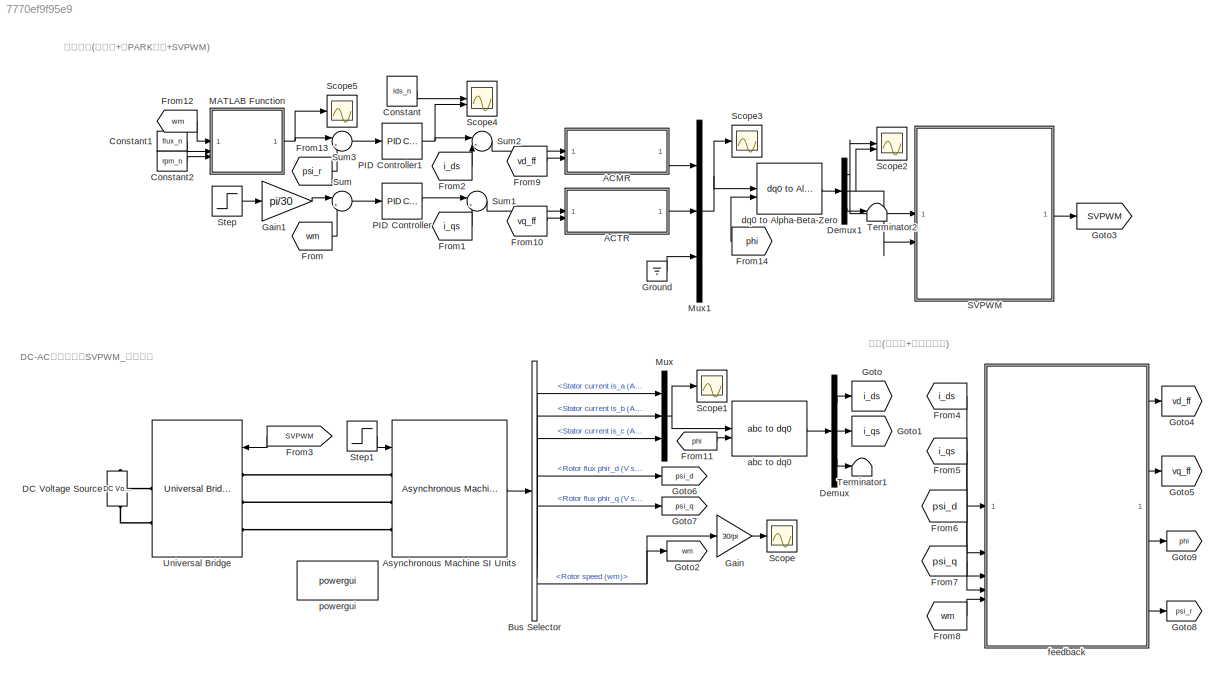
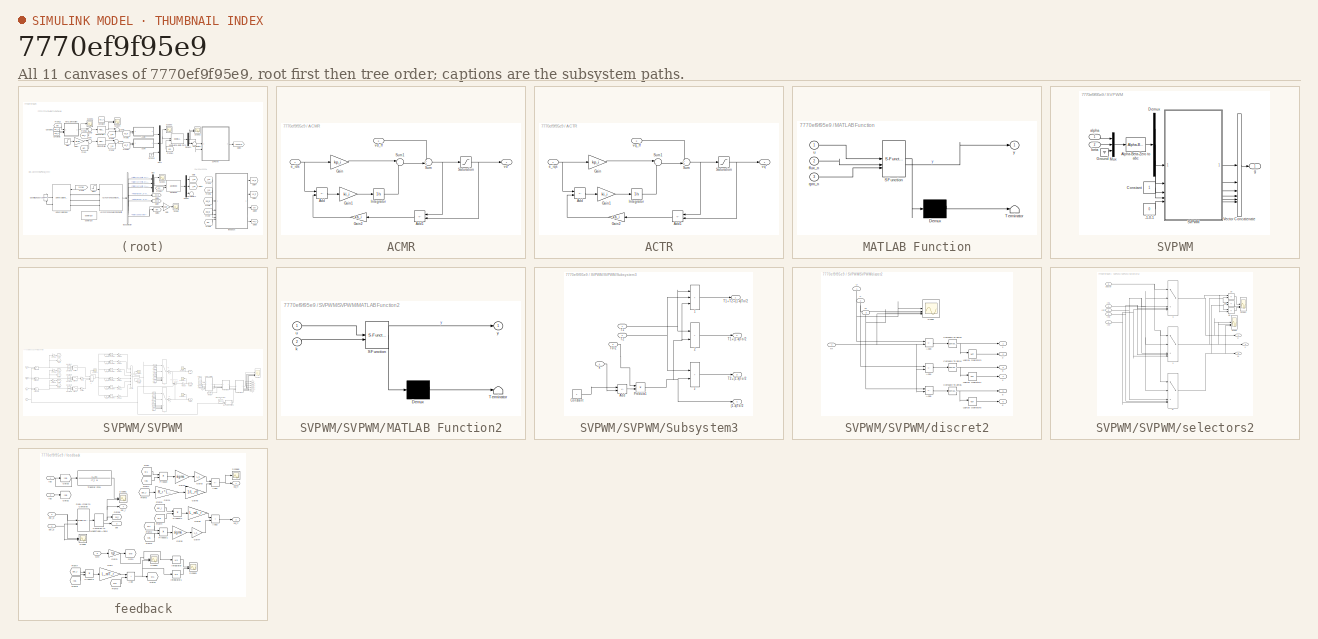
[diagram: thumbnail index - all 11 canvases of the model, root first then tree order]
MODEL slx_7770ef9f95e9
KIND model
CONFIG AbsTol = auto
CONFIG EnableMultiTasking = off
CONFIG FixedStep = auto
CONFIG MaxStep = auto
CONFIG MinStep = auto
CONFIG RelTol = 1e-3
CONFIG SampleTimeConstraint = Unconstrained
CONFIG SolverName = FixedStepAuto
CONFIG StartTime = 0.0
CONFIG StopTime = 1
BLOCK [SubSystem] ACMR
BLOCK [Sum] ACMR/Add
  IconShape = rectangular
  Inputs = +-
BLOCK [Sum] ACMR/Add1
  IconShape = rectangular
  Inputs = +-
BLOCK [Gain] ACMR/Gain
  Gain = kp_i
BLOCK [Gain] ACMR/Gain1
  Gain = ki_i
BLOCK [Gain] ACMR/Gain2
  Gain = ka_i
BLOCK [Integrator] ACMR/Integrator
BLOCK [Saturate] ACMR/Saturation
  LowerLimit = -V_max * 2
  UpperLimit = V_max * 2
BLOCK [Sum] ACMR/Sum
  Inputs = ++|
BLOCK [Sum] ACMR/Sum1
  Inputs = |++
BLOCK [Inport] ACMR/e_ids
BLOCK [Outport] ACMR/vd*
BLOCK [Inport] ACMR/vd_ff
  Port = 2
BLOCK [SubSystem] ACTR
BLOCK [Sum] ACTR/Add
  IconShape = rectangular
  Inputs = +-
BLOCK [Sum] ACTR/Add1
  IconShape = rectangular
  Inputs = +-
BLOCK [Gain] ACTR/Gain
  Gain = kp_i
BLOCK [Gain] ACTR/Gain1
  Gain = ki_i
BLOCK [Gain] ACTR/Gain2
  Gain = ka_i
BLOCK [Integrator] ACTR/Integrator
BLOCK [Saturate] ACTR/Saturation
  LowerLimit = -V_max * 2
  UpperLimit = V_max*2
BLOCK [Sum] ACTR/Sum
  Inputs = ++|
BLOCK [Sum] ACTR/Sum1
  Inputs = |++
BLOCK [Inport] ACTR/e_iqs
BLOCK [Outport] ACTR/vq*
BLOCK [Inport] ACTR/vq_ff
  Port = 2
BLOCK [Reference] Asynchronous Machine SI Units  REF=spsAsynchronousMachineSIUnitsLib/Asynchronous Machine
SI Units
  LibrarySourceBlock = sps_lib/Electrical Machines/Asynchronous Machine\nSI Units
  SourceBlock = spsAsynchronousMachineSIUnitsLib/Asynchronous Machine\nSI Units
  SourceType = Asynchronous Machine
BLOCK [BusSelector] Bus Selector
  OutputSignals = Stator measurements.Stator current is_a (A),Stator measurements.Stator current is_b (A),Stator measurements.Stator current is_c (A),Rotor measurements.Rotor flux phir_d (V s),Rotor measurements.Rotor flux phir_q (V s),Mechanical.Rotor speed (wm),Mechanical.Electromagnetic torque Te (N*m),Mechanical.Rotor angle thetam (rad)
BLOCK [Constant] Constant
  Value = Ids_n
BLOCK [Constant] Constant1
  Value = flux_n
BLOCK [Constant] Constant2
  Value = rpm_n
BLOCK [Reference] DC Voltage Source  REF=spsDCVoltageSourceLib/DC Voltage Source
  LibrarySourceBlock = sps_lib/Sources/DC Voltage Source
  SourceBlock = spsDCVoltageSourceLib/DC Voltage Source
  SourceType = DC Voltage Source
BLOCK [Demux] Demux
  Outputs = 3
BLOCK [Demux] Demux1
  Outputs = 3
BLOCK [From] From
  GotoTag = wm
BLOCK [From] From1
  GotoTag = i_qs
BLOCK [From] From10
  GotoTag = vq_ff
BLOCK [From] From11
  GotoTag = phi
BLOCK [From] From12
  GotoTag = wm
BLOCK [From] From13
  GotoTag = psi_r
BLOCK [From] From14
  GotoTag = phi
  NameLocation = top
BLOCK [From] From2
  GotoTag = i_ds
BLOCK [From] From3
  GotoTag = SVPWM
  NameLocation = top
BLOCK [From] From4
  GotoTag = i_ds
BLOCK [From] From5
  GotoTag = i_qs
BLOCK [From] From6
  GotoTag = psi_d
BLOCK [From] From7
  GotoTag = psi_q
BLOCK [From] From8
  GotoTag = wm
BLOCK [From] From9
  GotoTag = vd_ff
BLOCK [Gain] Gain
  Gain = 30/pi
BLOCK [Gain] Gain1
  Gain = pi/30
BLOCK [Goto] Goto
  GotoTag = i_ds
BLOCK [Goto] Goto1
  GotoTag = i_qs
BLOCK [Goto] Goto2
  GotoTag = wm
BLOCK [Goto] Goto3
  GotoTag = SVPWM
BLOCK [Goto] Goto4
  GotoTag = vd_ff
BLOCK [Goto] Goto5
  GotoTag = vq_ff
BLOCK [Goto] Goto6
  GotoTag = psi_d
BLOCK [Goto] Goto7
  GotoTag = psi_q
BLOCK [Goto] Goto8
  GotoTag = psi_r
BLOCK [Goto] Goto9
  GotoTag = phi
BLOCK [Ground] Ground
BLOCK [SubSystem] MATLAB Function
  ErrorFcn = Stateflow.Translate.translate
  PermitHierarchicalResolution = ExplicitOnly
  SFBlockType = MATLAB Function
  TreatAsAtomicUnit = on
BLOCK [Demux] MATLAB Function/ Demux 
  Outputs = 1
BLOCK [S-Function] MATLAB Function/ SFunction 
  EnableBusSupport = off
  FunctionName = sf_sfun
  PortCounts = [3 2]
  SFcnIsStateOwnerBlock = off
  SFunctionDeploymentMode = off
  Tag = Stateflow S-Function 2
BLOCK [Terminator] MATLAB Function/ Terminator 
BLOCK [Inport] MATLAB Function/flux_n
  Port = 2
BLOCK [Inport] MATLAB Function/rpm_n
  Port = 3
BLOCK [Inport] MATLAB Function/u
BLOCK [Outport] MATLAB Function/y
BLOCK [Mux] Mux
  DisplayOption = bar
  Inputs = 3
BLOCK [Mux] Mux1
  DisplayOption = bar
  Inputs = 3
BLOCK [Reference] PID Controller  REF=slpidlib/PID Controller
  LibrarySourceBlock = simulink/Continuous/PID Controller
  SourceBlock = slpidlib/PID Controller
  SourceType = PID 1dof
BLOCK [Reference] PID Controller1  REF=slpidlib/PID Controller
  LibrarySourceBlock = simulink/Continuous/PID Controller
  SourceBlock = slpidlib/PID Controller
  SourceType = PID 1dof
BLOCK [SubSystem] SVPWM
BLOCK [Constant] SVPWM/-1-0-1
  Value = 0
BLOCK [Reference] SVPWM/Alpha-Beta-Zero to abc  REF=spsAlphaBetaZerotoabcLib/Alpha-Beta-Zero
to abc
  LibrarySourceBlock = sps_lib/Control/Alpha-Beta-Zero\nto abc
  SourceBlock = spsAlphaBetaZerotoabcLib/Alpha-Beta-Zero\nto abc
  SourceType = Alpha-Beta-Zero to abc Transformation
BLOCK [Constant] SVPWM/Constant
BLOCK [Demux] SVPWM/Demux
  Outputs = 3
BLOCK [Ground] SVPWM/Ground
BLOCK [Mux] SVPWM/Mux
  DisplayOption = bar
  Inputs = 3
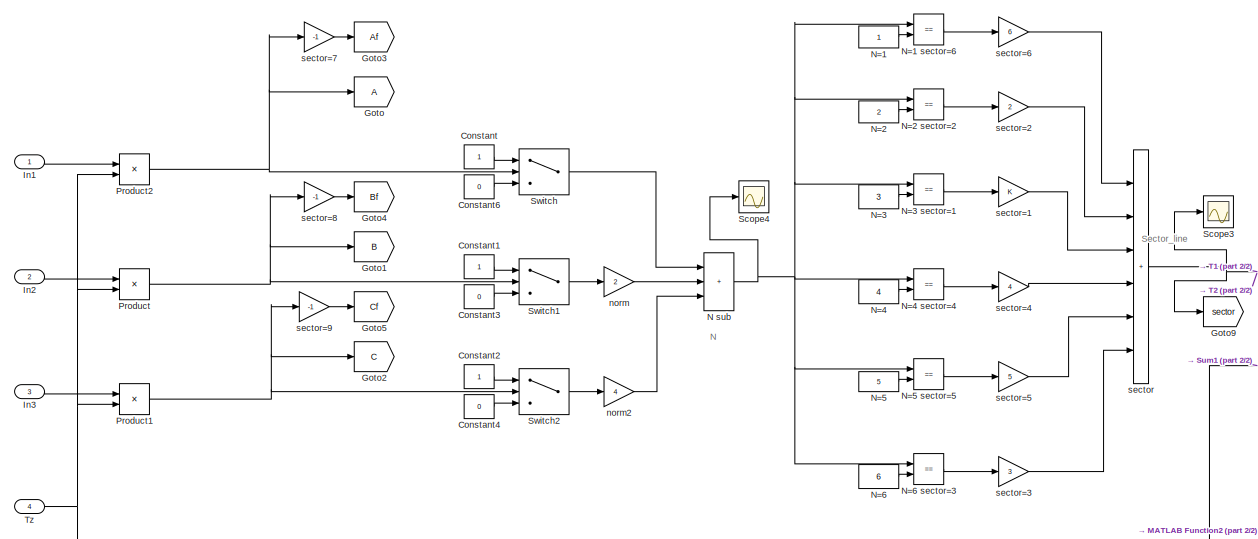
[diagram: SVPWM/SVPWM - part 1/2, left side, full height]
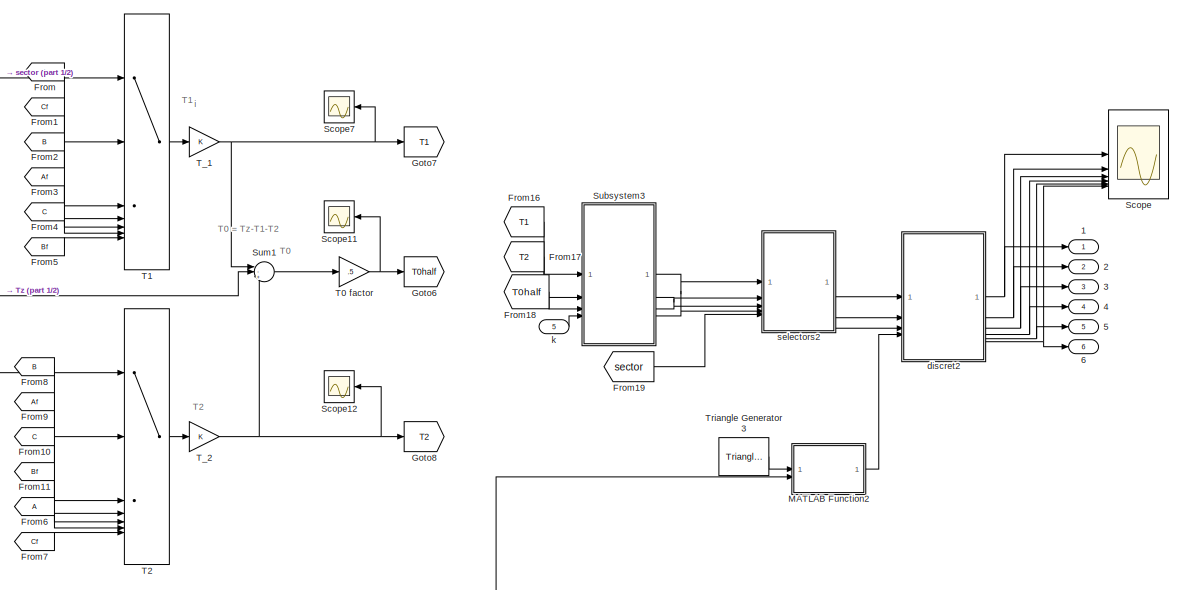
[diagram: SVPWM/SVPWM - part 2/2, right side, full height]
BLOCK [SubSystem] SVPWM/SVPWM
BLOCK [Outport] SVPWM/SVPWM/1
BLOCK [Outport] SVPWM/SVPWM/2
  Port = 2
BLOCK [Outport] SVPWM/SVPWM/3
  Port = 3
BLOCK [Outport] SVPWM/SVPWM/4
  Port = 4
BLOCK [Outport] SVPWM/SVPWM/5
  Port = 5
BLOCK [Outport] SVPWM/SVPWM/6
  Port = 6
BLOCK [Constant] SVPWM/SVPWM/Constant
BLOCK [Constant] SVPWM/SVPWM/Constant1
BLOCK [Constant] SVPWM/SVPWM/Constant2
BLOCK [Constant] SVPWM/SVPWM/Constant3
  Value = 0
BLOCK [Constant] SVPWM/SVPWM/Constant4
  Value = 0
BLOCK [Constant] SVPWM/SVPWM/Constant6
  Value = 0
BLOCK [From] SVPWM/SVPWM/From
BLOCK [From] SVPWM/SVPWM/From1
  GotoTag = Cf
BLOCK [From] SVPWM/SVPWM/From10
  GotoTag = C
BLOCK [From] SVPWM/SVPWM/From11
  GotoTag = Bf
BLOCK [From] SVPWM/SVPWM/From16
  GotoTag = T1
BLOCK [From] SVPWM/SVPWM/From17
  GotoTag = T2
BLOCK [From] SVPWM/SVPWM/From18
  GotoTag = T0half
BLOCK [From] SVPWM/SVPWM/From19
  GotoTag = sector
BLOCK [From] SVPWM/SVPWM/From2
  GotoTag = B
BLOCK [From] SVPWM/SVPWM/From3
  GotoTag = Af
BLOCK [From] SVPWM/SVPWM/From4
  GotoTag = C
BLOCK [From] SVPWM/SVPWM/From5
  GotoTag = Bf
BLOCK [From] SVPWM/SVPWM/From6
BLOCK [From] SVPWM/SVPWM/From7
  GotoTag = Cf
BLOCK [From] SVPWM/SVPWM/From8
  GotoTag = B
BLOCK [From] SVPWM/SVPWM/From9
  GotoTag = Af
BLOCK [Goto] SVPWM/SVPWM/Goto
BLOCK [Goto] SVPWM/SVPWM/Goto1
  GotoTag = B
BLOCK [Goto] SVPWM/SVPWM/Goto2
  GotoTag = C
BLOCK [Goto] SVPWM/SVPWM/Goto3
  GotoTag = Af
BLOCK [Goto] SVPWM/SVPWM/Goto4
  GotoTag = Bf
BLOCK [Goto] SVPWM/SVPWM/Goto5
  GotoTag = Cf
BLOCK [Goto] SVPWM/SVPWM/Goto6
  GotoTag = T0half
BLOCK [Goto] SVPWM/SVPWM/Goto7
  GotoTag = T1
BLOCK [Goto] SVPWM/SVPWM/Goto8
  GotoTag = T2
BLOCK [Goto] SVPWM/SVPWM/Goto9
  GotoTag = sector
BLOCK [Inport] SVPWM/SVPWM/In1
BLOCK [Inport] SVPWM/SVPWM/In2
  Port = 2
BLOCK [Inport] SVPWM/SVPWM/In3
  Port = 3
BLOCK [SubSystem] SVPWM/SVPWM/MATLAB Function2
  ErrorFcn = Stateflow.Translate.translate
  LibrarySourceBlock = simulink/User-Defined\nFunctions/MATLAB Function
  PermitHierarchicalResolution = ExplicitOnly
  SFBlockType = MATLAB Function
  TreatAsAtomicUnit = on
BLOCK [Demux] SVPWM/SVPWM/MATLAB Function2/ Demux 
  Outputs = 1
BLOCK [S-Function] SVPWM/SVPWM/MATLAB Function2/ SFunction 
  EnableBusSupport = off
  FunctionName = sf_sfun
  PortCounts = [2 2]
  SFcnIsStateOwnerBlock = off
  SFunctionDeploymentMode = off
  Tag = Stateflow S-Function 3
BLOCK [Terminator] SVPWM/SVPWM/MATLAB Function2/ Terminator 
BLOCK [Inport] SVPWM/SVPWM/MATLAB Function2/k
  Port = 2
BLOCK [Inport] SVPWM/SVPWM/MATLAB Function2/u
BLOCK [Outport] SVPWM/SVPWM/MATLAB Function2/y
BLOCK [Sum] SVPWM/SVPWM/N sub
  IconShape = rectangular
  Inputs = +++
BLOCK [Constant] SVPWM/SVPWM/N=1
BLOCK [RelationalOperator] SVPWM/SVPWM/N=1 sector=6
  InputSameDT = off
  Operator = ==
  OutDataTypeStr = boolean
BLOCK [Constant] SVPWM/SVPWM/N=2
  Value = 2
BLOCK [RelationalOperator] SVPWM/SVPWM/N=2 sector=2
  InputSameDT = off
  Operator = ==
  OutDataTypeStr = boolean
BLOCK [Constant] SVPWM/SVPWM/N=3
  Value = 3
BLOCK [RelationalOperator] SVPWM/SVPWM/N=3 sector=1
  InputSameDT = off
  Operator = ==
  OutDataTypeStr = boolean
BLOCK [Constant] SVPWM/SVPWM/N=4
  Value = 4
BLOCK [RelationalOperator] SVPWM/SVPWM/N=4 sector=4
  InputSameDT = off
  Operator = ==
  OutDataTypeStr = boolean
BLOCK [Constant] SVPWM/SVPWM/N=5
  Value = 5
BLOCK [RelationalOperator] SVPWM/SVPWM/N=5 sector=5
  InputSameDT = off
  Operator = ==
  OutDataTypeStr = boolean
BLOCK [Constant] SVPWM/SVPWM/N=6
  Value = 6
BLOCK [RelationalOperator] SVPWM/SVPWM/N=6 sector=3
  InputSameDT = off
  Operator = ==
  OutDataTypeStr = boolean
BLOCK [Product] SVPWM/SVPWM/Product
BLOCK [Product] SVPWM/SVPWM/Product1
BLOCK [Product] SVPWM/SVPWM/Product2
BLOCK [Scope] SVPWM/SVPWM/Scope
  ActiveDisplayYMaximum = 1.0733471074380165
  ActiveDisplayYMinimum = -0.11983471074380159
  DataLoggingVariableName = ScopeData1
  Floating = off
  GraphicalSettings = {"AxesScalingProperties":{"AlignXAxis":"Center","AlignYAxis":"Center","AutoScaleXAxisLimits":false,"AxesScaling":"Manual","AxesScalingNumUpdates":10,"ExpandOnly":true,"ScaleAxesLimitsAtStop":false,"XAxisDataRange":100,"YAxisDataRange":80},"DisplayProperties":{"ColorOrder":["auto","auto","auto","auto","auto","auto","auto","auto","auto","auto","auto","auto","auto","auto","auto","auto","auto","auto",...<+4003ch>
  LayoutDimensionsString = [6 1]
  MultipleDisplayCache = [{"MaxYLimMag":1.125,"MaxYLimReal":1.0733471074380165,"MinYLimMag":0,"MinYLimReal":-0.11983471074380159,"PlotAsMagnitudePhase":false,"ShowGrid":true,"ShowLegend":false,"Title":"%<SignalLabel>","YLabel":""},{"MaxYLimMag":1.125,"MaxYLimReal":1.1065465796726848,"MinYLimMag":0,"MinYLimReal":-0.46594019598078917,"PlotAsMagnitudePhase":false,"ShowGrid":true,"ShowLegend":false,"Title":"%<SignalLabel>","Y...<+792ch>
  NumInputPorts = 6
  ScopeFrameLocation = window
  WasSavedAsWebScope = on
  WindowPosition = [1.000000,1.000000,1280.000000,648.000000,]
BLOCK [Scope] SVPWM/SVPWM/Scope11
  ActiveDisplayYMaximum = 53.609603972290969
  ActiveDisplayYMinimum = -492.93722989300011
  DataLogging = on
  DataLoggingDecimateData = on
  DataLoggingDecimation = 1
  DataLoggingSaveFormat = Structure With Time
  DataLoggingVariableName = current2
  Floating = off
  GraphicalSettings = {"Style":{"BackgroundColor":[0.12941176470588237,0.12941176470588237,0.12941176470588237],"AxesColor":[0.07058823529411765,0.07058823529411765,0.07058823529411765],"LabelsColor":[0.8509803921568627,0.8509803921568627,0.8509803921568627],"PreserveColors":false,"Visible":[true],"LineStyle":["-"],"LineWidth":[1.5],"BarWidth":[0.9],"LineColor":["auto"],"LineFaceAlpha":[1],"LineEdgeAlpha":[1],"Marker":...<+1937ch>
  MultipleDisplayCache = [{"MaxYLimMag":492.93722989300011,"MaxYLimReal":53.609603972290969,"MinYLimMag":0,"MinYLimReal":-492.93722989300011,"PlotAsMagnitudePhase":false,"ShowGrid":true,"ShowLegend":true,"Title":"%<SignalLabel>","YLabel":""}]
  NameLocation = top
  NumInputPorts = 1
  ScopeFrameLocation = window
  ShowLegend = on
  WasSavedAsWebScope = on
  WindowPosition = [1.000000,1.000000,1280.000000,648.000000,]
BLOCK [Scope] SVPWM/SVPWM/Scope12
  ActiveDisplayYMaximum = 581.67686973428681
  ActiveDisplayYMinimum = -47.570247237341619
  DataLogging = on
  DataLoggingDecimateData = on
  DataLoggingDecimation = 1
  DataLoggingSaveFormat = Structure With Time
  DataLoggingVariableName = current3
  Floating = off
  GraphicalSettings = {"AxesScalingProperties":{"AlignXAxis":"Center","AlignYAxis":"Center","AutoScaleXAxisLimits":false,"AxesScaling":"Manual","AxesScalingNumUpdates":10,"ExpandOnly":true,"ScaleAxesLimitsAtStop":false,"XAxisDataRange":100,"YAxisDataRange":80},"DisplayProperties":{"ColorOrder":["auto","auto","auto","auto","auto","auto","auto","auto","auto","auto","auto","auto","auto","auto","auto","auto","auto","auto",...<+1932ch>
  MultipleDisplayCache = [{"MaxYLimMag":852.9801767915128,"MaxYLimReal":581.67686973428681,"MinYLimMag":0,"MinYLimReal":-47.570247237341619,"PlotAsMagnitudePhase":false,"ShowGrid":true,"ShowLegend":true,"Title":"%<SignalLabel>","YLabel":""}]
  NameLocation = top
  NumInputPorts = 1
  ScopeFrameLocation = window
  ShowLegend = on
  WasSavedAsWebScope = on
  WindowPosition = [1.000000,1.000000,1280.000000,648.000000,]
BLOCK [Scope] SVPWM/SVPWM/Scope3
  ActiveDisplayYMaximum = 6.2254857247595474
  ActiveDisplayYMinimum = 0.81076195805055384
  DataLoggingDecimateData = on
  DataLoggingDecimation = 1
  DataLoggingSaveFormat = Structure With Time
  DataLoggingVariableName = ScopeData3
  Floating = off
  GraphicalSettings = {"AxesScalingProperties":{"AlignXAxis":"Center","AlignYAxis":"Center","AutoScaleXAxisLimits":false,"AxesScaling":"Manual","AxesScalingNumUpdates":10,"ExpandOnly":true,"ScaleAxesLimitsAtStop":false,"XAxisDataRange":100,"YAxisDataRange":80},"DisplayProperties":{"ColorOrder":["auto","auto","auto","auto","auto","auto","auto","auto","auto","auto","auto","auto","auto","auto","auto","auto","auto","auto",...<+1928ch>
  MultipleDisplayCache = [{"MaxYLimMag":6.625,"MaxYLimReal":6.2254857247595474,"MinYLimMag":0.37500000000000022,"MinYLimReal":0.81076195805055384,"PlotAsMagnitudePhase":false,"ShowGrid":true,"ShowLegend":false,"Title":"%<SignalLabel>","YLabel":""}]
  NumInputPorts = 1
  ScopeFrameLocation = window
  WasSavedAsWebScope = on
  WindowPosition = [1.000000,1.000000,1280.000000,648.000000,]
BLOCK [Scope] SVPWM/SVPWM/Scope4
  ActiveDisplayYMaximum = 7.0888774478654026
  ActiveDisplayYMinimum = 0.33967719556370923
  DataLoggingDecimateData = on
  DataLoggingDecimation = 1
  DataLoggingSaveFormat = Structure With Time
  DataLoggingVariableName = ScopeData4
  Floating = off
  GraphicalSettings = {"AxesScalingProperties":{"AlignXAxis":"Center","AlignYAxis":"Center","AutoScaleXAxisLimits":false,"AxesScaling":"Manual","AxesScalingNumUpdates":10,"ExpandOnly":true,"ScaleAxesLimitsAtStop":false,"XAxisDataRange":100,"YAxisDataRange":80},"DisplayProperties":{"ColorOrder":["auto","auto","auto","auto","auto","auto","auto","auto","auto","auto","auto","auto","auto","auto","auto","auto","auto","auto",...<+1897ch>
  MultipleDisplayCache = [{"MaxYLimMag":6.625,"MaxYLimReal":7.0888774478654026,"MinYLimMag":0.37500000000000022,"MinYLimReal":0.33967719556370923,"PlotAsMagnitudePhase":false,"ShowGrid":true,"ShowLegend":false,"Title":"%<SignalLabel>","YLabel":""}]
  NumInputPorts = 1
  ScopeFrameLocation = window
  WasSavedAsWebScope = on
  WindowPosition = [1.000000,1.000000,1280.000000,648.000000,]
BLOCK [Scope] SVPWM/SVPWM/Scope7
  ActiveDisplayYMaximum = 933.20587173538911
  ActiveDisplayYMinimum = -744.74431123189447
  DataLogging = on
  DataLoggingDecimateData = on
  DataLoggingDecimation = 1
  DataLoggingSaveFormat = Structure With Time
  DataLoggingVariableName = current1
  Floating = off
  GraphicalSettings = {"AxesScalingProperties":{"AlignXAxis":"Center","AlignYAxis":"Center","AutoScaleXAxisLimits":false,"AxesScaling":"Manual","AxesScalingNumUpdates":10,"ExpandOnly":true,"ScaleAxesLimitsAtStop":false,"XAxisDataRange":100,"YAxisDataRange":80},"DisplayProperties":{"ColorOrder":["auto","auto","auto","auto","auto","auto","auto","auto","auto","auto","auto","auto","auto","auto","auto","auto","auto","auto",...<+1932ch>
  MultipleDisplayCache = [{"MaxYLimMag":851.69542049351094,"MaxYLimReal":933.20587173538911,"MinYLimMag":0,"MinYLimReal":-744.74431123189447,"PlotAsMagnitudePhase":false,"ShowGrid":true,"ShowLegend":true,"Title":"%<SignalLabel>","YLabel":""}]
  NameLocation = top
  NumInputPorts = 1
  ScopeFrameLocation = window
  ShowLegend = on
  WasSavedAsWebScope = on
  WindowPosition = [1.000000,1.000000,1280.000000,648.000000,]
BLOCK [SubSystem] SVPWM/SVPWM/Subsystem3
BLOCK [Outport] SVPWM/SVPWM/Subsystem3/(1-k)To//2
  Port = 4
BLOCK [Sum] SVPWM/SVPWM/Subsystem3/1
  IconShape = rectangular
  Inputs = +++
BLOCK [Sum] SVPWM/SVPWM/Subsystem3/2
  IconShape = rectangular
BLOCK [Sum] SVPWM/SVPWM/Subsystem3/Add
  IconShape = rectangular
  Inputs = +-
BLOCK [Constant] SVPWM/SVPWM/Subsystem3/Constant
BLOCK [Product] SVPWM/SVPWM/Subsystem3/Product1
BLOCK [Inport] SVPWM/SVPWM/Subsystem3/T0//2
  Port = 3
BLOCK [Inport] SVPWM/SVPWM/Subsystem3/T1
BLOCK [Outport] SVPWM/SVPWM/Subsystem3/T1+(1-k)To//2
  Port = 2
BLOCK [Outport] SVPWM/SVPWM/Subsystem3/T1+T2+(1-k)To//2
BLOCK [Inport] SVPWM/SVPWM/Subsystem3/T2
  Port = 2
BLOCK [Outport] SVPWM/SVPWM/Subsystem3/T2+(1-k)To//2
  Port = 3
BLOCK [Inport] SVPWM/SVPWM/Subsystem3/k
  Port = 4
BLOCK [Sum] SVPWM/SVPWM/Subsystem3/z
  IconShape = rectangular
BLOCK [Sum] SVPWM/SVPWM/Sum1
  Inputs = |-+-
BLOCK [Switch] SVPWM/SVPWM/Switch
  InputSameDT = off
  SaturateOnIntegerOverflow = off
BLOCK [Switch] SVPWM/SVPWM/Switch1
  InputSameDT = off
  SaturateOnIntegerOverflow = off
BLOCK [Switch] SVPWM/SVPWM/Switch2
  InputSameDT = off
  SaturateOnIntegerOverflow = off
BLOCK [Gain] SVPWM/SVPWM/T0 factor
  Gain = .5
BLOCK [MultiPortSwitch] SVPWM/SVPWM/T1
  DataPortIndices = {1,2,3,4,5,6}
  DataPortOrder = Specify indices
  DiagnosticForDefault = None
  InputSameDT = off
  Inputs = 4
  SaturateOnIntegerOverflow = off
BLOCK [MultiPortSwitch] SVPWM/SVPWM/T2
  DataPortIndices = {1,2,3,4,5,6}
  DataPortOrder = Specify indices
  DiagnosticForDefault = None
  InputSameDT = off
  Inputs = 4
  SaturateOnIntegerOverflow = off
BLOCK [Gain] SVPWM/SVPWM/T_1
BLOCK [Gain] SVPWM/SVPWM/T_2
BLOCK [Reference] SVPWM/SVPWM/Triangle Generator3  REF=spsTriangleGeneratorLib/Triangle
Generator
  LibrarySourceBlock = sps_lib/Sources/Signal Generator Sources/Triangle\nGenerator
  SourceBlock = spsTriangleGeneratorLib/Triangle\nGenerator
  SourceType = Triangle Generator
BLOCK [Inport] SVPWM/SVPWM/Tz
  Port = 4
BLOCK [SubSystem] SVPWM/SVPWM/discret2
BLOCK [Outport] SVPWM/SVPWM/discret2/1
BLOCK [Outport] SVPWM/SVPWM/discret2/2
  Port = 2
BLOCK [Outport] SVPWM/SVPWM/discret2/3
  Port = 3
BLOCK [Outport] SVPWM/SVPWM/discret2/4
  Port = 4
BLOCK [Outport] SVPWM/SVPWM/discret2/5
  Port = 5
BLOCK [Outport] SVPWM/SVPWM/discret2/6
  Port = 6
BLOCK [Sum] SVPWM/SVPWM/discret2/Add3
  IconShape = rectangular
  Inputs = -+
BLOCK [Sum] SVPWM/SVPWM/discret2/Add4
  IconShape = rectangular
  Inputs = -+
BLOCK [Sum] SVPWM/SVPWM/discret2/Add5
  IconShape = rectangular
  Inputs = -+
BLOCK [Reference] SVPWM/SVPWM/discret2/Compare To Zero3  REF=simulink/Logic and Bit
Operations/Compare
To Zero
  SourceBlock = simulink/Logic and Bit\nOperations/Compare\nTo Zero
  SourceType = Compare To Zero
BLOCK [Reference] SVPWM/SVPWM/discret2/Compare To Zero4  REF=simulink/Logic and Bit
Operations/Compare
To Zero
  SourceBlock = simulink/Logic and Bit\nOperations/Compare\nTo Zero
  SourceType = Compare To Zero
BLOCK [Reference] SVPWM/SVPWM/discret2/Compare To Zero5  REF=simulink/Logic and Bit
Operations/Compare
To Zero
  SourceBlock = simulink/Logic and Bit\nOperations/Compare\nTo Zero
  SourceType = Compare To Zero
BLOCK [Logic] SVPWM/SVPWM/discret2/Logical Operator3
  AllPortsSameDT = off
  Operator = NOT
  OutDataTypeStr = boolean
BLOCK [Logic] SVPWM/SVPWM/discret2/Logical Operator4
  AllPortsSameDT = off
  Operator = NOT
  OutDataTypeStr = boolean
BLOCK [Logic] SVPWM/SVPWM/discret2/Logical Operator5
  AllPortsSameDT = off
  Operator = NOT
  OutDataTypeStr = boolean
BLOCK [Scope] SVPWM/SVPWM/discret2/Scope
  ActiveDisplayYMaximum = 533.53223123772113
  ActiveDisplayYMinimum = -546.26196625582566
  DataLoggingVariableName = ScopeData2
  Floating = off
  GraphicalSettings = {"Style":{"BackgroundColor":[0.12941176470588237,0.12941176470588237,0.12941176470588237],"AxesColor":[0.07058823529411765,0.07058823529411765,0.07058823529411765],"LabelsColor":[0.8509803921568627,0.8509803921568627,0.8509803921568627],"PreserveColors":false,"Visible":[true,true,true,true],"LineStyle":["-","-","-","-"],"LineWidth":[1.5,1.5,1.5,1.5],"BarWidth":[0.9,0.9,0.9,0.9],"LineColor":["auto"...<+3141ch>
  LayoutDimensionsString = [4,1]
  MultipleDisplayCache = [{"MaxYLimMag":546.26196625582566,"MaxYLimReal":533.53223123772113,"MinYLimMag":0,"MinYLimReal":-546.26196625582566,"PlotAsMagnitudePhase":false,"ShowGrid":true,"ShowLegend":true,"Title":"%<SignalLabel>","YLabel":""},{"MaxYLimMag":547.10608194760152,"MaxYLimReal":547.10608194760152,"MinYLimMag":0,"MinYLimReal":-531.16170602435136,"PlotAsMagnitudePhase":false,"ShowGrid":true,"ShowLegend":true,"Titl...<+423ch>
  NumInputPorts = 4
  ScopeFrameLocation = window
  ShowLegend = on
  WasSavedAsWebScope = on
  WindowPosition = [1.000000,1.000000,1280.000000,648.000000,]
BLOCK [Inport] SVPWM/SVPWM/discret2/U
  NameLocation = right
BLOCK [Inport] SVPWM/SVPWM/discret2/V
  NameLocation = right
  Port = 2
BLOCK [Inport] SVPWM/SVPWM/discret2/W
  NameLocation = right
  Port = 3
BLOCK [Inport] SVPWM/SVPWM/discret2/tri
  Port = 4
BLOCK [Inport] SVPWM/SVPWM/k
  Port = 5
BLOCK [Gain] SVPWM/SVPWM/norm
  Gain = 2
BLOCK [Gain] SVPWM/SVPWM/norm2
  Gain = 4
BLOCK [Sum] SVPWM/SVPWM/sector
  IconShape = rectangular
  Inputs = ++++++
BLOCK [Gain] SVPWM/SVPWM/sector=1
BLOCK [Gain] SVPWM/SVPWM/sector=2
  Gain = 2
BLOCK [Gain] SVPWM/SVPWM/sector=3
  Gain = 3
BLOCK [Gain] SVPWM/SVPWM/sector=4
  Gain = 4
BLOCK [Gain] SVPWM/SVPWM/sector=5
  Gain = 5
BLOCK [Gain] SVPWM/SVPWM/sector=6
  Gain = 6
BLOCK [Gain] SVPWM/SVPWM/sector=7
  Gain = -1
BLOCK [Gain] SVPWM/SVPWM/sector=8
  Gain = -1
BLOCK [Gain] SVPWM/SVPWM/sector=9
  Gain = -1
BLOCK [SubSystem] SVPWM/SVPWM/selectors2
BLOCK [Inport] SVPWM/SVPWM/selectors2/In1
BLOCK [Inport] SVPWM/SVPWM/selectors2/In2
  Port = 2
BLOCK [Inport] SVPWM/SVPWM/selectors2/In3
  Port = 3
BLOCK [Inport] SVPWM/SVPWM/selectors2/In4
  Port = 4
BLOCK [Scope] SVPWM/SVPWM/selectors2/Scope
  ActiveDisplayYMaximum = 1.125
  ActiveDisplayYMinimum = -0.125
  DataLoggingVariableName = ScopeData1
  Floating = off
  GraphicalSettings = {"GraphicalSettings":{"LegacySettings":true,"Style":{"AxesScalingProperties":{"ScaleAxesLimitsAtStop":false},"Style":{"AxesColor":"[0 0 0]","ChannelNames":[""],"ColorOrder":"[1 1 0.0666666666666667;0.0745098039215686 0.623529411764706 1;1 0.411764705882353 0.16078431372549;0.392156862745098 0.831372549019608 0.0745098039215686;0.717647058823529 0.274509803921569 1;0.0588235294117647 1 1;1 0.074509...<+430ch>
  MultipleDisplayCache = [{"MaxYLimMag":1.125,"MaxYLimReal":1.125,"MinYLimMag":0,"MinYLimReal":-0.125,"PlotAsMagnitudePhase":false,"ShowGrid":true,"ShowLegend":true,"Title":"%<SignalLabel>","YLabel":""}]
  NumInputPorts = 3
  ShowLegend = on
  WasSavedAsWebScope = on
  WindowPosition = [1 1 1280 648]
BLOCK [Scope] SVPWM/SVPWM/selectors2/Scope1
  ActiveDisplayYMaximum = 1.25
  ActiveDisplayYMinimum = -1.25
  DataLoggingVariableName = ScopeData6
  Floating = off
  GraphicalSettings = {"GraphicalSettings":{"LegacySettings":true,"Style":{"AxesScalingProperties":{"ScaleAxesLimitsAtStop":false},"Style":{"AxesColor":"[0 0 0]","ChannelNames":[""],"ColorOrder":"[1 1 0.0666666666666667;0.0745098039215686 0.623529411764706 1;1 0.411764705882353 0.16078431372549;0.392156862745098 0.831372549019608 0.0745098039215686;0.717647058823529 0.274509803921569 1;0.0588235294117647 1 1;1 0.074509...<+430ch>
  MultipleDisplayCache = [{"MaxYLimMag":1.25,"MaxYLimReal":1.25,"MinYLimMag":0,"MinYLimReal":-1.25,"PlotAsMagnitudePhase":false,"ShowGrid":true,"ShowLegend":true,"Title":"%<SignalLabel>","YLabel":""}]
  NumInputPorts = 3
  ShowLegend = on
  WasSavedAsWebScope = on
  WindowPosition = [1 1 1280 648]
BLOCK [Outport] SVPWM/SVPWM/selectors2/U
BLOCK [Outport] SVPWM/SVPWM/selectors2/V
  Port = 2
BLOCK [Outport] SVPWM/SVPWM/selectors2/W
  Port = 3
BLOCK [Inport] SVPWM/SVPWM/selectors2/sector 
  Port = 5
BLOCK [MultiPortSwitch] SVPWM/SVPWM/selectors2/u
  DataPortIndices = {[1,6],2,5,[3,4]}
  DataPortOrder = Specify indices
  DiagnosticForDefault = None
  InputSameDT = off
  Inputs = 4
  SaturateOnIntegerOverflow = off
BLOCK [Sum] SVPWM/SVPWM/selectors2/uv
  IconShape = rectangular
  Inputs = +-
BLOCK [MultiPortSwitch] SVPWM/SVPWM/selectors2/v
  DataPortIndices = {[2,3],4,1,[5,6]}
  DataPortOrder = Specify indices
  DiagnosticForDefault = None
  InputSameDT = off
  Inputs = 4
  SaturateOnIntegerOverflow = off
BLOCK [Sum] SVPWM/SVPWM/selectors2/vw
  IconShape = rectangular
  Inputs = +-
BLOCK [MultiPortSwitch] SVPWM/SVPWM/selectors2/w
  DataPortIndices = {[4,5],6,3,[1,2]}
  DataPortOrder = Specify indices
  DiagnosticForDefault = None
  InputSameDT = off
  Inputs = 4
  SaturateOnIntegerOverflow = off
BLOCK [Sum] SVPWM/SVPWM/selectors2/wu
  IconShape = rectangular
  Inputs = +-
BLOCK [Concatenate] SVPWM/Vector Concatenate
  NumInputs = 6
BLOCK [Inport] SVPWM/alpha
BLOCK [Inport] SVPWM/beta
  Port = 2
BLOCK [Outport] SVPWM/g
BLOCK [Scope] Scope
  ActiveDisplayYMaximum = 2182.1289862079198
  ActiveDisplayYMinimum = -245.05423330740308
  Floating = off
  GraphicalSettings = {"Style":{"BackgroundColor":[0.12941176470588237,0.12941176470588237,0.12941176470588237],"AxesColor":[0.07058823529411765,0.07058823529411765,0.07058823529411765],"LabelsColor":[0.8509803921568627,0.8509803921568627,0.8509803921568627],"PreserveColors":false,"Visible":[true],"LineStyle":["-"],"LineWidth":[1.5],"BarWidth":[0.9],"LineColor":["auto"],"LineFaceAlpha":[1],"LineEdgeAlpha":[1],"Marker":...<+1991ch>
  MultipleDisplayCache = [{"MaxYLimMag":2182.1289862079198,"MaxYLimReal":2182.1289862079198,"MinYLimMag":0,"MinYLimReal":-245.05423330740308,"PlotAsMagnitudePhase":false,"ShowGrid":true,"ShowLegend":false,"Title":"%<SignalLabel>","YLabel":""}]
  NumInputPorts = 1
  ScopeFrameLocation = window
  WasSavedAsWebScope = on
  WindowPosition = [0.000000,12.000000,1280.000000,697.000000,]
BLOCK [Scope] Scope1
  ActiveDisplayYMaximum = 1
  ActiveDisplayYMinimum = -1
  DataLoggingVariableName = ScopeData2
  Floating = off
  GraphicalSettings = {"Style":{"BackgroundColor":[0.12941176470588237,0.12941176470588237,0.12941176470588237],"AxesColor":[0.07058823529411765,0.07058823529411765,0.07058823529411765],"LabelsColor":[0.8509803921568627,0.8509803921568627,0.8509803921568627],"PreserveColors":false,"Visible":[true,true,true],"LineStyle":["-","-","-"],"LineWidth":[1.5,1.5,1.5],"BarWidth":[0.9,0.9,0.9],"LineColor":["auto","auto","auto"],"...<+2160ch>
  MultipleDisplayCache = [{"MaxYLimMag":1,"MaxYLimReal":1,"MinYLimMag":0,"MinYLimReal":-1,"PlotAsMagnitudePhase":false,"ShowGrid":true,"ShowLegend":false,"Title":"%<SignalLabel>","YLabel":""}]
  NumInputPorts = 1
  ScopeFrameLocation = window
  WasSavedAsWebScope = on
  WindowPosition = [0.000000,12.000000,1280.000000,697.000000,]
BLOCK [Scope] Scope2
  ActiveDisplayYMaximum = 1
  ActiveDisplayYMinimum = -1
  DataLoggingVariableName = ScopeData5
  Floating = off
  GraphicalSettings = {"Style":{"BackgroundColor":[0.12941176470588237,0.12941176470588237,0.12941176470588237],"AxesColor":[0.07058823529411765,0.07058823529411765,0.07058823529411765],"LabelsColor":[0.8509803921568627,0.8509803921568627,0.8509803921568627],"PreserveColors":false,"Visible":[true,true],"LineStyle":["-","-"],"LineWidth":[1.5,1.5],"BarWidth":[0.9,0.9],"LineColor":["auto","auto"],"LineFaceAlpha":[1,1],"Li...<+1999ch>
  MultipleDisplayCache = [{"MaxYLimMag":1,"MaxYLimReal":1,"MinYLimMag":0,"MinYLimReal":-1,"PlotAsMagnitudePhase":false,"ShowGrid":true,"ShowLegend":false,"Title":"%<SignalLabel>","YLabel":""}]
  NumInputPorts = 2
  ScopeFrameLocation = window
  WasSavedAsWebScope = on
  WindowPosition = [1.000000,1.000000,1280.000000,697.000000,]
BLOCK [Scope] Scope3
  ActiveDisplayYMaximum = 499.74368491943784
  ActiveDisplayYMinimum = -553.80143526649249
  DataLoggingVariableName = ScopeData1
  Floating = off
  GraphicalSettings = {"Style":{"BackgroundColor":[0.12941176470588237,0.12941176470588237,0.12941176470588237],"AxesColor":[0.07058823529411765,0.07058823529411765,0.07058823529411765],"LabelsColor":[0.8509803921568627,0.8509803921568627,0.8509803921568627],"PreserveColors":false,"Visible":[true,true,true],"LineStyle":["-","-","-"],"LineWidth":[1.5,1.5,1.5],"BarWidth":[0.9,0.9,0.9],"LineColor":["auto","auto","auto"],"...<+2258ch>
  MultipleDisplayCache = [{"MaxYLimMag":553.80143526649249,"MaxYLimReal":499.74368491943784,"MinYLimMag":0,"MinYLimReal":-553.80143526649249,"PlotAsMagnitudePhase":false,"ShowGrid":true,"ShowLegend":true,"Title":"%<SignalLabel>","YLabel":""}]
  NumInputPorts = 1
  ScopeFrameLocation = window
  ShowLegend = on
  WasSavedAsWebScope = on
  WindowPosition = [1.000000,1.000000,1280.000000,697.000000,]
BLOCK [Scope] Scope4
  ActiveDisplayYMaximum = 4.03663172867287
  ActiveDisplayYMinimum = -2.7427305612345254
  DataLoggingVariableName = ScopeData8
  Floating = off
  GraphicalSettings = {"Style":{"BackgroundColor":[0.12941176470588237,0.12941176470588237,0.12941176470588237],"AxesColor":[0.07058823529411765,0.07058823529411765,0.07058823529411765],"LabelsColor":[0.8509803921568627,0.8509803921568627,0.8509803921568627],"PreserveColors":false,"Visible":[true,true],"LineStyle":["-","-"],"LineWidth":[1.5,1.5],"BarWidth":[0.9,0.9],"LineColor":["auto","auto"],"LineFaceAlpha":[1,1],"Li...<+2006ch>
  MultipleDisplayCache = [{"MaxYLimMag":4.03663172867287,"MaxYLimReal":4.03663172867287,"MinYLimMag":0,"MinYLimReal":-2.7427305612345254,"PlotAsMagnitudePhase":false,"ShowGrid":true,"ShowLegend":false,"Title":"%<SignalLabel>","YLabel":""}]
  NumInputPorts = 2
  ScopeFrameLocation = window
  WasSavedAsWebScope = on
  WindowPosition = [1.000000,1.000000,1280.000000,697.000000,]
BLOCK [Scope] Scope5
  ActiveDisplayYMaximum = 0.96156070598738208
  ActiveDisplayYMinimum = 0.877559064610581
  DataLoggingVariableName = ScopeData9
  Floating = off
  GraphicalSettings = {"Style":{"BackgroundColor":[0.12941176470588237,0.12941176470588237,0.12941176470588237],"AxesColor":[0.07058823529411765,0.07058823529411765,0.07058823529411765],"LabelsColor":[0.8509803921568627,0.8509803921568627,0.8509803921568627],"PreserveColors":false,"Visible":[true],"LineStyle":["-"],"LineWidth":[1.5],"BarWidth":[0.9],"LineColor":["auto"],"LineFaceAlpha":[1],"LineEdgeAlpha":[1],"Marker":...<+1897ch>
  MultipleDisplayCache = [{"MaxYLimMag":0.96156070598738208,"MaxYLimReal":0.96156070598738208,"MinYLimMag":0.877559064610581,"MinYLimReal":0.877559064610581,"PlotAsMagnitudePhase":false,"ShowGrid":true,"ShowLegend":false,"Title":"%<SignalLabel>","YLabel":""}]
  NumInputPorts = 1
  ScopeFrameLocation = window
  WasSavedAsWebScope = on
  WindowPosition = [1.000000,1.000000,1280.000000,697.000000,]
BLOCK [Step] Step
  After = 1500
  Before = 1000
  SampleTime = 0
  Time = 0.6
BLOCK [Step] Step1
  After = 20
  Before = 10
  SampleTime = 0
  Time = 0.3
BLOCK [Sum] Sum
  Inputs = |+-
BLOCK [Sum] Sum1
  Inputs = |+-
BLOCK [Sum] Sum2
  Inputs = |+-
BLOCK [Sum] Sum3
  Inputs = |+-
  NameLocation = top
BLOCK [Terminator] Terminator1
BLOCK [Terminator] Terminator2
BLOCK [Reference] Universal Bridge  REF=spsUniversalBridgeLib/Universal Bridge
  LibrarySourceBlock = sps_lib/Power Electronics/Universal Bridge
  SourceBlock = spsUniversalBridgeLib/Universal Bridge
  SourceType = Universal Bridge
BLOCK [Reference] abc to dq0  REF=spsabctodq0Lib/abc to dq0
  LibrarySourceBlock = sps_lib/Control/abc to dq0
  SourceBlock = spsabctodq0Lib/abc to dq0
  SourceType = abc to dq0 Transformation
BLOCK [Reference] dq0 to Alpha-Beta-Zero  REF=spsdq0toAlphaBetaZeroLib/dq0 to
Alpha-Beta-Zero
  LibrarySourceBlock = sps_lib/Control/dq0 to\nAlpha-Beta-Zero
  SourceBlock = spsdq0toAlphaBetaZeroLib/dq0 to\nAlpha-Beta-Zero
  SourceType = dq0 to Alpha-Beta-Zero Transformation
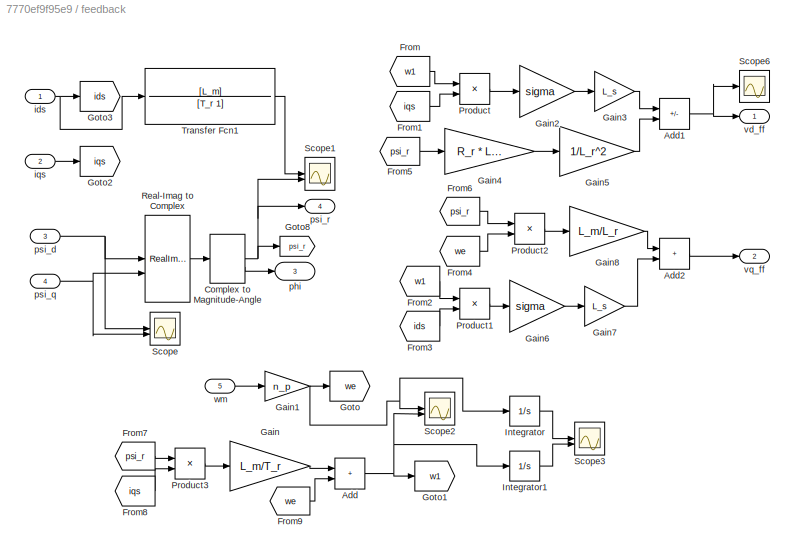
BLOCK [SubSystem] feedback
BLOCK [Sum] feedback/Add
  IconShape = rectangular
BLOCK [Sum] feedback/Add1
  IconShape = rectangular
  Inputs = --
BLOCK [Sum] feedback/Add2
  IconShape = rectangular
BLOCK [ComplexToMagnitudeAngle] feedback/Complex to Magnitude-Angle
BLOCK [From] feedback/From
  GotoTag = w1
BLOCK [From] feedback/From1
  GotoTag = iqs
BLOCK [From] feedback/From2
  GotoTag = w1
BLOCK [From] feedback/From3
  GotoTag = ids
BLOCK [From] feedback/From4
  GotoTag = we
BLOCK [From] feedback/From5
  GotoTag = psi_r
BLOCK [From] feedback/From6
  GotoTag = psi_r
BLOCK [From] feedback/From7
  GotoTag = psi_r
BLOCK [From] feedback/From8
  GotoTag = iqs
BLOCK [From] feedback/From9
  GotoTag = we
BLOCK [Gain] feedback/Gain
  Gain = L_m/T_r
BLOCK [Gain] feedback/Gain1
  Gain = n_p
BLOCK [Gain] feedback/Gain2
  Gain = sigma
BLOCK [Gain] feedback/Gain3
  Gain = L_s
BLOCK [Gain] feedback/Gain4
  Gain = R_r * L_m
BLOCK [Gain] feedback/Gain5
  Gain = 1/L_r^2
BLOCK [Gain] feedback/Gain6
  Gain = sigma
BLOCK [Gain] feedback/Gain7
  Gain = L_s
BLOCK [Gain] feedback/Gain8
  Gain = L_m/L_r
BLOCK [Goto] feedback/Goto
  GotoTag = we
BLOCK [Goto] feedback/Goto1
  GotoTag = w1
BLOCK [Goto] feedback/Goto2
  GotoTag = iqs
BLOCK [Goto] feedback/Goto3
  GotoTag = ids
BLOCK [Goto] feedback/Goto8
  GotoTag = psi_r
BLOCK [Integrator] feedback/Integrator
BLOCK [Integrator] feedback/Integrator1
BLOCK [Product] feedback/Product
BLOCK [Product] feedback/Product1
BLOCK [Product] feedback/Product2
BLOCK [Product] feedback/Product3
BLOCK [RealImagToComplex] feedback/Real-Imag to Complex
BLOCK [Scope] feedback/Scope
  ActiveDisplayYMaximum = 1.5992338688221852
  ActiveDisplayYMinimum = -1.6110842776276593
  DataLoggingVariableName = ScopeData7
  Floating = off
  GraphicalSettings = {"Style":{"BackgroundColor":[0.12941176470588237,0.12941176470588237,0.12941176470588237],"AxesColor":[0.07058823529411765,0.07058823529411765,0.07058823529411765],"LabelsColor":[0.8509803921568627,0.8509803921568627,0.8509803921568627],"PreserveColors":false,"Visible":[true,true],"LineStyle":["-","-"],"LineWidth":[1.5,1.5],"BarWidth":[0.9,0.9],"LineColor":["auto","auto"],"LineFaceAlpha":[1,1],"Li...<+2104ch>
  MultipleDisplayCache = [{"MaxYLimMag":1.6110842776276593,"MaxYLimReal":1.5992338688221852,"MinYLimMag":0,"MinYLimReal":-1.6110842776276593,"PlotAsMagnitudePhase":false,"ShowGrid":true,"ShowLegend":true,"Title":"%<SignalLabel>","YLabel":""}]
  NumInputPorts = 2
  ScopeFrameLocation = window
  ShowLegend = on
  WasSavedAsWebScope = on
  WindowPosition = [0.000000,12.000000,1280.000000,697.000000,]
BLOCK [Scope] feedback/Scope1
  ActiveDisplayYMaximum = 1.7279858547641289
  ActiveDisplayYMinimum = -0.19199842830712538
  DataLoggingVariableName = ScopeData3
  Floating = off
  GraphicalSettings = {"Style":{"BackgroundColor":[0.12941176470588237,0.12941176470588237,0.12941176470588237],"AxesColor":[0.07058823529411765,0.07058823529411765,0.07058823529411765],"LabelsColor":[0.8509803921568627,0.8509803921568627,0.8509803921568627],"PreserveColors":false,"Visible":[true,true],"LineStyle":["-","-"],"LineWidth":[1.5,1.5],"BarWidth":[0.9,0.9],"LineColor":["auto","auto"],"LineFaceAlpha":[1,1],"Li...<+2481ch>
  LayoutDimensionsString = [2,1]
  MultipleDisplayCache = [{"MaxYLimMag":1.7279858547641289,"MaxYLimReal":1.7279858547641289,"MinYLimMag":0,"MinYLimReal":-0.19199842830712538,"PlotAsMagnitudePhase":false,"ShowGrid":true,"ShowLegend":false,"Title":"%<SignalLabel>","YLabel":""},{"MaxYLimMag":1.7279841817573836,"MaxYLimReal":1.7279841817573836,"MinYLimMag":0,"MinYLimReal":-0.191998242417487,"PlotAsMagnitudePhase":false,"ShowGrid":true,"ShowLegend":false,"Ti...<+35ch>
  NumInputPorts = 2
  ScopeFrameLocation = window
  WasSavedAsWebScope = on
  WindowPosition = [1.000000,1.000000,1280.000000,697.000000,]
BLOCK [Scope] feedback/Scope2
  ActiveDisplayYMaximum = 260.34761589561333
  ActiveDisplayYMinimum = -28.950143898994849
  DataLoggingVariableName = ScopeData4
  Floating = off
  GraphicalSettings = {"Style":{"BackgroundColor":[0.12941176470588237,0.12941176470588237,0.12941176470588237],"AxesColor":[0.07058823529411765,0.07058823529411765,0.07058823529411765],"LabelsColor":[0.8509803921568627,0.8509803921568627,0.8509803921568627],"PreserveColors":false,"Visible":[true,true],"LineStyle":["-","-"],"LineWidth":[1.5,1.5],"BarWidth":[0.9,0.9],"LineColor":["auto","auto"],"LineFaceAlpha":[1,1],"Li...<+2100ch>
  MultipleDisplayCache = [{"MaxYLimMag":260.34761589561333,"MaxYLimReal":260.34761589561333,"MinYLimMag":0,"MinYLimReal":-28.950143898994849,"PlotAsMagnitudePhase":false,"ShowGrid":true,"ShowLegend":false,"Title":"%<SignalLabel>","YLabel":""}]
  NumInputPorts = 2
  ScopeFrameLocation = window
  WasSavedAsWebScope = on
  WindowPosition = [1.000000,1.000000,1280.000000,697.000000,]
BLOCK [Scope] feedback/Scope3
  ActiveDisplayYMaximum = 1
  ActiveDisplayYMinimum = -1
  DataLoggingVariableName = ScopeData6
  Floating = off
  GraphicalSettings = {"Style":{"BackgroundColor":[0.12941176470588237,0.12941176470588237,0.12941176470588237],"AxesColor":[0.07058823529411765,0.07058823529411765,0.07058823529411765],"LabelsColor":[0.8509803921568627,0.8509803921568627,0.8509803921568627],"PreserveColors":false,"Visible":[true,true],"LineStyle":["-","-"],"LineWidth":[1.5,1.5],"BarWidth":[0.9,0.9],"LineColor":["auto","auto"],"LineFaceAlpha":[1,1],"Li...<+2113ch>
  MultipleDisplayCache = [{"MaxYLimMag":1,"MaxYLimReal":1,"MinYLimMag":0,"MinYLimReal":-1,"PlotAsMagnitudePhase":false,"ShowGrid":true,"ShowLegend":false,"Title":"%<SignalLabel>","YLabel":""}]
  NumInputPorts = 2
  ScopeFrameLocation = window
  WasSavedAsWebScope = on
  WindowPosition = [1.000000,1.000000,1280.000000,697.000000,]
BLOCK [Scope] feedback/Scope6
  ActiveDisplayYMaximum = 1
  ActiveDisplayYMinimum = -1
  DataLogging = on
  DataLoggingSaveFormat = Array
  DataLoggingVariableName = usm0601
  Floating = off
  GraphicalSettings = {"Style":{"BackgroundColor":[0.12941176470588237,0.12941176470588237,0.12941176470588237],"AxesColor":[0.07058823529411765,0.07058823529411765,0.07058823529411765],"LabelsColor":[0.8509803921568627,0.8509803921568627,0.8509803921568627],"PreserveColors":false,"Visible":[true],"LineStyle":["-"],"LineWidth":[1.5],"BarWidth":[0.9],"LineColor":["auto"],"LineFaceAlpha":[1],"LineEdgeAlpha":[1],"Marker":...<+1886ch>
  MultipleDisplayCache = [{"MaxYLimMag":1,"MaxYLimReal":1,"MinYLimMag":0,"MinYLimReal":-1,"PlotAsMagnitudePhase":false,"ShowGrid":true,"ShowLegend":false,"Title":"%<SignalLabel>","YLabel":""}]
  NumInputPorts = 1
  ScopeFrameLocation = window
  WasSavedAsWebScope = on
  WindowPosition = [0.000000,12.000000,1280.000000,697.000000,]
BLOCK [TransferFcn] feedback/Transfer Fcn1
  Denominator = [T_r 1]
  Numerator = [L_m]
BLOCK [Inport] feedback/ids
BLOCK [Inport] feedback/iqs
  Port = 2
BLOCK [Outport] feedback/phi
  Port = 3
BLOCK [Inport] feedback/psi_d
  Port = 3
BLOCK [Inport] feedback/psi_q
  Port = 4
BLOCK [Outport] feedback/psi_r
  Port = 4
BLOCK [Outport] feedback/vd_ff
BLOCK [Outport] feedback/vq_ff
  Port = 2
BLOCK [Inport] feedback/wm
  Port = 5
BLOCK [Reference] powergui  REF=spspowerguiLib/powergui
  LibrarySourceBlock = sps_lib/powergui
  Priority = 1
  SourceBlock = spspowerguiLib/powergui
  SourceType = PSB option menu block
ANNOTATION (root): DC-AC三相逆变桥SVPWM_异步电机
ANNOTATION (root): 前向通道(控制器+逆PARK变换+SVPWM)
ANNOTATION (root): 反馈(角速度+电流环反馈)
ANNOTATION SVPWM/SVPWM: N
ANNOTATION SVPWM/SVPWM: Sector_line
ANNOTATION SVPWM/SVPWM: T0
ANNOTATION SVPWM/SVPWM: T0 = Tz-T1-T2
ANNOTATION SVPWM/SVPWM: T1
ANNOTATION SVPWM/SVPWM: T2
ANNOTATION SVPWM/SVPWM: i
LINE ACMR/Add1:1 -> ACMR/Gain2:1
LINE ACMR/Add:1 -> ACMR/Gain1:1
LINE ACMR/Gain1:1 -> ACMR/Integrator:1
LINE ACMR/Gain2:1 -> ACMR/Add:2
LINE ACMR/Gain:1 -> ACMR/Sum1:1
LINE ACMR/Integrator:1 -> ACMR/Sum1:2
NET ACMR/Saturation:1 -> ACMR/Add1:2, ACMR/vd*:1
LINE ACMR/Sum1:1 -> ACMR/Sum:2
NET ACMR/Sum:1 -> ACMR/Add1:1, ACMR/Saturation:1
NET ACMR/e_ids:1 -> ACMR/Add:1, ACMR/Gain:1
LINE ACMR/vd_ff:1 -> ACMR/Sum:1
LINE ACMR:1 -> Mux1:1
LINE ACTR/Add1:1 -> ACTR/Gain2:1
LINE ACTR/Add:1 -> ACTR/Gain1:1
LINE ACTR/Gain1:1 -> ACTR/Integrator:1
LINE ACTR/Gain2:1 -> ACTR/Add:2
LINE ACTR/Gain:1 -> ACTR/Sum1:1
LINE ACTR/Integrator:1 -> ACTR/Sum1:2
NET ACTR/Saturation:1 -> ACTR/Add1:2, ACTR/vq*:1
LINE ACTR/Sum1:1 -> ACTR/Sum:2
NET ACTR/Sum:1 -> ACTR/Add1:1, ACTR/Saturation:1
NET ACTR/e_iqs:1 -> ACTR/Add:1, ACTR/Gain:1
LINE ACTR/vq_ff:1 -> ACTR/Sum:1
LINE ACTR:1 -> Mux1:2
LINE Asynchronous Machine SI Units:1 -> Bus Selector:1
LINE Bus Selector:1 -> Mux:1
LINE Bus Selector:2 -> Mux:2
LINE Bus Selector:3 -> Mux:3
LINE Bus Selector:4 -> Goto6:1
LINE Bus Selector:5 -> Goto7:1
NET Bus Selector:6 -> Gain:1, Goto2:1
LINE Constant1:1 -> MATLAB Function:2
LINE Constant2:1 -> MATLAB Function:3
LINE Constant:1 -> Scope4:1
NET Demux1:1 -> SVPWM:1, Scope2:1
NET Demux1:2 -> SVPWM:2, Scope2:2
LINE Demux1:3 -> Terminator2:1
LINE Demux:1 -> Goto:1
LINE Demux:2 -> Goto1:1
LINE Demux:3 -> Terminator1:1
LINE From10:1 -> ACTR:2
LINE From11:1 -> abc to dq0:2
LINE From12:1 -> MATLAB Function:1
LINE From13:1 -> Sum3:2
LINE From14:1 -> dq0 to Alpha-Beta-Zero:2
LINE From1:1 -> Sum1:2
LINE From2:1 -> Sum2:2
LINE From3:1 -> Universal Bridge:1
LINE From4:1 -> feedback:1
LINE From5:1 -> feedback:2
LINE From6:1 -> feedback:3
LINE From7:1 -> feedback:4
LINE From8:1 -> feedback:5
LINE From9:1 -> ACMR:2
LINE From:1 -> Sum:2
LINE Gain1:1 -> Sum:1
LINE Gain:1 -> Scope:1
LINE Ground:1 -> Mux1:3
NET MATLAB Function:1 -> Scope5:1, Sum3:1
NET Mux1:1 -> Scope3:1, dq0 to Alpha-Beta-Zero:1
NET Mux:1 -> Scope1:1, abc to dq0:1
NET PID Controller1:1 -> Scope4:2, Sum2:1
LINE PID Controller:1 -> Sum1:1
LINE SVPWM/-1-0-1:1 -> SVPWM/SVPWM:5
LINE SVPWM/Alpha-Beta-Zero to abc:1 -> SVPWM/Demux:1
LINE SVPWM/Constant:1 -> SVPWM/SVPWM:4
LINE SVPWM/Demux:1 -> SVPWM/SVPWM:1
LINE SVPWM/Demux:2 -> SVPWM/SVPWM:2
LINE SVPWM/Demux:3 -> SVPWM/SVPWM:3
LINE SVPWM/Ground:1 -> SVPWM/Mux:3
LINE SVPWM/Mux:1 -> SVPWM/Alpha-Beta-Zero to abc:1
LINE SVPWM/SVPWM/Constant1:1 -> SVPWM/SVPWM/Switch1:1
LINE SVPWM/SVPWM/Constant2:1 -> SVPWM/SVPWM/Switch2:1
LINE SVPWM/SVPWM/Constant3:1 -> SVPWM/SVPWM/Switch1:3
LINE SVPWM/SVPWM/Constant4:1 -> SVPWM/SVPWM/Switch2:3
LINE SVPWM/SVPWM/Constant6:1 -> SVPWM/SVPWM/Switch:3
LINE SVPWM/SVPWM/Constant:1 -> SVPWM/SVPWM/Switch:1
LINE SVPWM/SVPWM/From10:1 -> SVPWM/SVPWM/T2:4
LINE SVPWM/SVPWM/From11:1 -> SVPWM/SVPWM/T2:5
LINE SVPWM/SVPWM/From16:1 -> SVPWM/SVPWM/Subsystem3:1
LINE SVPWM/SVPWM/From17:1 -> SVPWM/SVPWM/Subsystem3:2
LINE SVPWM/SVPWM/From18:1 -> SVPWM/SVPWM/Subsystem3:3
LINE SVPWM/SVPWM/From19:1 -> SVPWM/SVPWM/selectors2:5
LINE SVPWM/SVPWM/From1:1 -> SVPWM/SVPWM/T1:3
LINE SVPWM/SVPWM/From2:1 -> SVPWM/SVPWM/T1:4
LINE SVPWM/SVPWM/From3:1 -> SVPWM/SVPWM/T1:5
LINE SVPWM/SVPWM/From4:1 -> SVPWM/SVPWM/T1:6
LINE SVPWM/SVPWM/From5:1 -> SVPWM/SVPWM/T1:7
LINE SVPWM/SVPWM/From6:1 -> SVPWM/SVPWM/T2:6
LINE SVPWM/SVPWM/From7:1 -> SVPWM/SVPWM/T2:7
LINE SVPWM/SVPWM/From8:1 -> SVPWM/SVPWM/T2:2
LINE SVPWM/SVPWM/From9:1 -> SVPWM/SVPWM/T2:3
LINE SVPWM/SVPWM/From:1 -> SVPWM/SVPWM/T1:2
LINE SVPWM/SVPWM/In1:1 -> SVPWM/SVPWM/Product2:1
LINE SVPWM/SVPWM/In2:1 -> SVPWM/SVPWM/Product:1
LINE SVPWM/SVPWM/In3:1 -> SVPWM/SVPWM/Product1:1
LINE SVPWM/SVPWM/MATLAB Function2:1 -> SVPWM/SVPWM/discret2:4
NET SVPWM/SVPWM/N sub:1 -> SVPWM/SVPWM/N=1 sector=6:1, SVPWM/SVPWM/N=2 sector=2:1, SVPWM/SVPWM/N=3 sector=1:1, SVPWM/SVPWM/N=4 sector=4:1, SVPWM/SVPWM/N=5 sector=5:1, SVPWM/SVPWM/N=6 sector=3:1, SVPWM/SVPWM/Scope4:1
LINE SVPWM/SVPWM/N=1 sector=6:1 -> SVPWM/SVPWM/sector=6:1
LINE SVPWM/SVPWM/N=1:1 -> SVPWM/SVPWM/N=1 sector=6:2
LINE SVPWM/SVPWM/N=2 sector=2:1 -> SVPWM/SVPWM/sector=2:1
LINE SVPWM/SVPWM/N=2:1 -> SVPWM/SVPWM/N=2 sector=2:2
LINE SVPWM/SVPWM/N=3 sector=1:1 -> SVPWM/SVPWM/sector=1:1
LINE SVPWM/SVPWM/N=3:1 -> SVPWM/SVPWM/N=3 sector=1:2
LINE SVPWM/SVPWM/N=4 sector=4:1 -> SVPWM/SVPWM/sector=4:1
LINE SVPWM/SVPWM/N=4:1 -> SVPWM/SVPWM/N=4 sector=4:2
LINE SVPWM/SVPWM/N=5 sector=5:1 -> SVPWM/SVPWM/sector=5:1
LINE SVPWM/SVPWM/N=5:1 -> SVPWM/SVPWM/N=5 sector=5:2
LINE SVPWM/SVPWM/N=6 sector=3:1 -> SVPWM/SVPWM/sector=3:1
LINE SVPWM/SVPWM/N=6:1 -> SVPWM/SVPWM/N=6 sector=3:2
NET SVPWM/SVPWM/Product1:1 -> SVPWM/SVPWM/Goto2:1, SVPWM/SVPWM/Switch2:2, SVPWM/SVPWM/sector=9:1
NET SVPWM/SVPWM/Product2:1 -> SVPWM/SVPWM/Goto:1, SVPWM/SVPWM/Switch:2, SVPWM/SVPWM/sector=7:1
NET SVPWM/SVPWM/Product:1 -> SVPWM/SVPWM/Goto1:1, SVPWM/SVPWM/Switch1:2, SVPWM/SVPWM/sector=8:1
LINE SVPWM/SVPWM/Subsystem3/1:1 -> SVPWM/SVPWM/Subsystem3/T1+T2+(1-k)To//2:1
LINE SVPWM/SVPWM/Subsystem3/2:1 -> SVPWM/SVPWM/Subsystem3/T1+(1-k)To//2:1
LINE SVPWM/SVPWM/Subsystem3/Add:1 -> SVPWM/SVPWM/Subsystem3/Product1:2
LINE SVPWM/SVPWM/Subsystem3/Constant:1 -> SVPWM/SVPWM/Subsystem3/Add:1
NET SVPWM/SVPWM/Subsystem3/Product1:1 -> SVPWM/SVPWM/Subsystem3/(1-k)To//2:1, SVPWM/SVPWM/Subsystem3/1:3, SVPWM/SVPWM/Subsystem3/2:2, SVPWM/SVPWM/Subsystem3/z:2
LINE SVPWM/SVPWM/Subsystem3/T0//2:1 -> SVPWM/SVPWM/Subsystem3/Product1:1
NET SVPWM/SVPWM/Subsystem3/T1:1 -> SVPWM/SVPWM/Subsystem3/1:1, SVPWM/SVPWM/Subsystem3/2:1
NET SVPWM/SVPWM/Subsystem3/T2:1 -> SVPWM/SVPWM/Subsystem3/1:2, SVPWM/SVPWM/Subsystem3/z:1
LINE SVPWM/SVPWM/Subsystem3/k:1 -> SVPWM/SVPWM/Subsystem3/Add:2
LINE SVPWM/SVPWM/Subsystem3/z:1 -> SVPWM/SVPWM/Subsystem3/T2+(1-k)To//2:1
LINE SVPWM/SVPWM/Subsystem3:1 -> SVPWM/SVPWM/selectors2:1
LINE SVPWM/SVPWM/Subsystem3:2 -> SVPWM/SVPWM/selectors2:2
LINE SVPWM/SVPWM/Subsystem3:3 -> SVPWM/SVPWM/selectors2:3
LINE SVPWM/SVPWM/Subsystem3:4 -> SVPWM/SVPWM/selectors2:4
LINE SVPWM/SVPWM/Sum1:1 -> SVPWM/SVPWM/T0 factor:1
LINE SVPWM/SVPWM/Switch1:1 -> SVPWM/SVPWM/norm:1
LINE SVPWM/SVPWM/Switch2:1 -> SVPWM/SVPWM/norm2:1
LINE SVPWM/SVPWM/Switch:1 -> SVPWM/SVPWM/N sub:1
NET SVPWM/SVPWM/T0 factor:1 -> SVPWM/SVPWM/Goto6:1, SVPWM/SVPWM/Scope11:1
LINE SVPWM/SVPWM/T1:1 -> SVPWM/SVPWM/T_1:1
LINE SVPWM/SVPWM/T2:1 -> SVPWM/SVPWM/T_2:1
NET SVPWM/SVPWM/T_1:1 -> SVPWM/SVPWM/Goto7:1, SVPWM/SVPWM/Scope7:1, SVPWM/SVPWM/Sum1:1
NET SVPWM/SVPWM/T_2:1 -> SVPWM/SVPWM/Goto8:1, SVPWM/SVPWM/Scope12:1, SVPWM/SVPWM/Sum1:3
LINE SVPWM/SVPWM/Triangle Generator3:1 -> SVPWM/SVPWM/MATLAB Function2:1
NET SVPWM/SVPWM/Tz:1 -> SVPWM/SVPWM/MATLAB Function2:2, SVPWM/SVPWM/Product1:2, SVPWM/SVPWM/Product2:2, SVPWM/SVPWM/Product:2, SVPWM/SVPWM/Sum1:2
LINE SVPWM/SVPWM/discret2/Add3:1 -> SVPWM/SVPWM/discret2/Compare To Zero3:1
LINE SVPWM/SVPWM/discret2/Add4:1 -> SVPWM/SVPWM/discret2/Compare To Zero4:1
LINE SVPWM/SVPWM/discret2/Add5:1 -> SVPWM/SVPWM/discret2/Compare To Zero5:1
NET SVPWM/SVPWM/discret2/Compare To Zero3:1 -> SVPWM/SVPWM/discret2/1:1, SVPWM/SVPWM/discret2/Logical Operator3:1
NET SVPWM/SVPWM/discret2/Compare To Zero4:1 -> SVPWM/SVPWM/discret2/3:1, SVPWM/SVPWM/discret2/Logical Operator4:1
NET SVPWM/SVPWM/discret2/Compare To Zero5:1 -> SVPWM/SVPWM/discret2/5:1, SVPWM/SVPWM/discret2/Logical Operator5:1
LINE SVPWM/SVPWM/discret2/Logical Operator3:1 -> SVPWM/SVPWM/discret2/2:1
LINE SVPWM/SVPWM/discret2/Logical Operator4:1 -> SVPWM/SVPWM/discret2/4:1
LINE SVPWM/SVPWM/discret2/Logical Operator5:1 -> SVPWM/SVPWM/discret2/6:1
NET SVPWM/SVPWM/discret2/U:1 -> SVPWM/SVPWM/discret2/Add3:1, SVPWM/SVPWM/discret2/Scope:1
NET SVPWM/SVPWM/discret2/V:1 -> SVPWM/SVPWM/discret2/Add4:1, SVPWM/SVPWM/discret2/Scope:2
NET SVPWM/SVPWM/discret2/W:1 -> SVPWM/SVPWM/discret2/Add5:1, SVPWM/SVPWM/discret2/Scope:3
NET SVPWM/SVPWM/discret2/tri:1 -> SVPWM/SVPWM/discret2/Add3:2, SVPWM/SVPWM/discret2/Add4:2, SVPWM/SVPWM/discret2/Add5:2, SVPWM/SVPWM/discret2/Scope:4
NET SVPWM/SVPWM/discret2:1 -> SVPWM/SVPWM/1:1, SVPWM/SVPWM/Scope:1
NET SVPWM/SVPWM/discret2:2 -> SVPWM/SVPWM/2:1, SVPWM/SVPWM/Scope:2
NET SVPWM/SVPWM/discret2:3 -> SVPWM/SVPWM/3:1, SVPWM/SVPWM/Scope:3
NET SVPWM/SVPWM/discret2:4 -> SVPWM/SVPWM/4:1, SVPWM/SVPWM/Scope:4
NET SVPWM/SVPWM/discret2:5 -> SVPWM/SVPWM/5:1, SVPWM/SVPWM/Scope:5
NET SVPWM/SVPWM/discret2:6 -> SVPWM/SVPWM/6:1, SVPWM/SVPWM/Scope:6
LINE SVPWM/SVPWM/k:1 -> SVPWM/SVPWM/Subsystem3:4
LINE SVPWM/SVPWM/norm2:1 -> SVPWM/SVPWM/N sub:3
LINE SVPWM/SVPWM/norm:1 -> SVPWM/SVPWM/N sub:2
NET SVPWM/SVPWM/sector:1 -> SVPWM/SVPWM/Goto9:1, SVPWM/SVPWM/Scope3:1, SVPWM/SVPWM/T1:1, SVPWM/SVPWM/T2:1
LINE SVPWM/SVPWM/sector=1:1 -> SVPWM/SVPWM/sector:3
LINE SVPWM/SVPWM/sector=2:1 -> SVPWM/SVPWM/sector:2
LINE SVPWM/SVPWM/sector=3:1 -> SVPWM/SVPWM/sector:6
LINE SVPWM/SVPWM/sector=4:1 -> SVPWM/SVPWM/sector:4
LINE SVPWM/SVPWM/sector=5:1 -> SVPWM/SVPWM/sector:5
LINE SVPWM/SVPWM/sector=6:1 -> SVPWM/SVPWM/sector:1
LINE SVPWM/SVPWM/sector=7:1 -> SVPWM/SVPWM/Goto3:1
LINE SVPWM/SVPWM/sector=8:1 -> SVPWM/SVPWM/Goto4:1
LINE SVPWM/SVPWM/sector=9:1 -> SVPWM/SVPWM/Goto5:1
NET SVPWM/SVPWM/selectors2/In1:1 -> SVPWM/SVPWM/selectors2/u:2, SVPWM/SVPWM/selectors2/v:2, SVPWM/SVPWM/selectors2/w:2
NET SVPWM/SVPWM/selectors2/In2:1 -> SVPWM/SVPWM/selectors2/u:3, SVPWM/SVPWM/selectors2/v:3, SVPWM/SVPWM/selectors2/w:3
NET SVPWM/SVPWM/selectors2/In3:1 -> SVPWM/SVPWM/selectors2/u:4, SVPWM/SVPWM/selectors2/v:4, SVPWM/SVPWM/selectors2/w:4
NET SVPWM/SVPWM/selectors2/In4:1 -> SVPWM/SVPWM/selectors2/u:5, SVPWM/SVPWM/selectors2/v:5, SVPWM/SVPWM/selectors2/w:5
NET SVPWM/SVPWM/selectors2/sector :1 -> SVPWM/SVPWM/selectors2/u:1, SVPWM/SVPWM/selectors2/v:1, SVPWM/SVPWM/selectors2/w:1
NET SVPWM/SVPWM/selectors2/u:1 -> SVPWM/SVPWM/selectors2/Scope:1, SVPWM/SVPWM/selectors2/U:1, SVPWM/SVPWM/selectors2/uv:1, SVPWM/SVPWM/selectors2/wu:2
LINE SVPWM/SVPWM/selectors2/uv:1 -> SVPWM/SVPWM/selectors2/Scope1:1
NET SVPWM/SVPWM/selectors2/v:1 -> SVPWM/SVPWM/selectors2/Scope:2, SVPWM/SVPWM/selectors2/V:1, SVPWM/SVPWM/selectors2/uv:2, SVPWM/SVPWM/selectors2/vw:1
LINE SVPWM/SVPWM/selectors2/vw:1 -> SVPWM/SVPWM/selectors2/Scope1:2
NET SVPWM/SVPWM/selectors2/w:1 -> SVPWM/SVPWM/selectors2/Scope:3, SVPWM/SVPWM/selectors2/W:1, SVPWM/SVPWM/selectors2/vw:2, SVPWM/SVPWM/selectors2/wu:1
LINE SVPWM/SVPWM/selectors2/wu:1 -> SVPWM/SVPWM/selectors2/Scope1:3
LINE SVPWM/SVPWM/selectors2:1 -> SVPWM/SVPWM/discret2:1
LINE SVPWM/SVPWM/selectors2:2 -> SVPWM/SVPWM/discret2:2
LINE SVPWM/SVPWM/selectors2:3 -> SVPWM/SVPWM/discret2:3
LINE SVPWM/SVPWM:1 -> SVPWM/Vector Concatenate:1
LINE SVPWM/SVPWM:2 -> SVPWM/Vector Concatenate:2
LINE SVPWM/SVPWM:3 -> SVPWM/Vector Concatenate:3
LINE SVPWM/SVPWM:4 -> SVPWM/Vector Concatenate:4
LINE SVPWM/SVPWM:5 -> SVPWM/Vector Concatenate:5
LINE SVPWM/SVPWM:6 -> SVPWM/Vector Concatenate:6
LINE SVPWM/Vector Concatenate:1 -> SVPWM/g:1
LINE SVPWM/alpha:1 -> SVPWM/Mux:1
LINE SVPWM/beta:1 -> SVPWM/Mux:2
LINE SVPWM:1 -> Goto3:1
LINE Step1:1 -> Asynchronous Machine SI Units:1
LINE Step:1 -> Gain1:1
LINE Sum1:1 -> ACTR:1
LINE Sum2:1 -> ACMR:1
LINE Sum3:1 -> PID Controller1:1
LINE Sum:1 -> PID Controller:1
LINE abc to dq0:1 -> Demux:1
LINE dq0 to Alpha-Beta-Zero:1 -> Demux1:1
NET feedback/Add1:1 -> feedback/Scope6:1, feedback/vd_ff:1
LINE feedback/Add2:1 -> feedback/vq_ff:1
NET feedback/Add:1 -> feedback/Goto1:1, feedback/Integrator1:1, feedback/Scope2:2
NET feedback/Complex to Magnitude-Angle:1 -> feedback/Goto8:1, feedback/Scope1:2, feedback/psi_r:1
LINE feedback/Complex to Magnitude-Angle:2 -> feedback/phi:1
LINE feedback/From1:1 -> feedback/Product:2
LINE feedback/From2:1 -> feedback/Product1:1
LINE feedback/From3:1 -> feedback/Product1:2
LINE feedback/From4:1 -> feedback/Product2:2
LINE feedback/From5:1 -> feedback/Gain4:1
LINE feedback/From6:1 -> feedback/Product2:1
LINE feedback/From7:1 -> feedback/Product3:1
LINE feedback/From8:1 -> feedback/Product3:2
LINE feedback/From9:1 -> feedback/Add:2
LINE feedback/From:1 -> feedback/Product:1
NET feedback/Gain1:1 -> feedback/Goto:1, feedback/Integrator:1, feedback/Scope2:1
LINE feedback/Gain2:1 -> feedback/Gain3:1
LINE feedback/Gain3:1 -> feedback/Add1:1
LINE feedback/Gain4:1 -> feedback/Gain5:1
LINE feedback/Gain5:1 -> feedback/Add1:2
LINE feedback/Gain6:1 -> feedback/Gain7:1
LINE feedback/Gain7:1 -> feedback/Add2:2
LINE feedback/Gain8:1 -> feedback/Add2:1
LINE feedback/Gain:1 -> feedback/Add:1
LINE feedback/Integrator1:1 -> feedback/Scope3:2
LINE feedback/Integrator:1 -> feedback/Scope3:1
LINE feedback/Product1:1 -> feedback/Gain6:1
LINE feedback/Product2:1 -> feedback/Gain8:1
LINE feedback/Product3:1 -> feedback/Gain:1
LINE feedback/Product:1 -> feedback/Gain2:1
LINE feedback/Real-Imag to Complex:1 -> feedback/Complex to Magnitude-Angle:1
LINE feedback/Transfer Fcn1:1 -> feedback/Scope1:1
NET feedback/ids:1 -> feedback/Goto3:1, feedback/Transfer Fcn1:1
LINE feedback/iqs:1 -> feedback/Goto2:1
NET feedback/psi_d:1 -> feedback/Real-Imag to Complex:1, feedback/Scope:1
NET feedback/psi_q:1 -> feedback/Real-Imag to Complex:2, feedback/Scope:2
LINE feedback/wm:1 -> feedback/Gain1:1
LINE feedback:1 -> Goto4:1
LINE feedback:2 -> Goto5:1
LINE feedback:3 -> Goto9:1
LINE feedback:4 -> Goto8:1
PLINE Asynchronous Machine SI Units:LConn1 -- Universal Bridge:LConn1
PLINE Asynchronous Machine SI Units:LConn2 -- Universal Bridge:LConn2
PLINE Asynchronous Machine SI Units:LConn3 -- Universal Bridge:LConn3
PLINE DC Voltage Source:LConn1 -- Universal Bridge:RConn2
PLINE DC Voltage Source:RConn1 -- Universal Bridge:RConn1
note: NET lines group one-source signal fan-out (src -> all destinations, sorted); 1:1 wires keep LINE
CHART SVPWM/SVPWM/MATLAB Function2 states=1 transitions=1
  STATE_LABEL 'eML_blk_kernel()'
  STATE_LABEL 'SCRIPT:\nfunction y = fcn(u,k)\n% y = k*(u+1)/2;\ny=k*u;'
CHART MATLAB Function states=1 transitions=1
  STATE_LABEL 'eML_blk_kernel()'
  STATE_LABEL 'SCRIPT:\nfunction y = fcn(u,flux_n,rpm_n)\nif u<(rpm_n*pi/30)\n    y=flux_n;\nelse\n    y=flux_n*(rpm_n*pi/30)/u;\nend\n'
CHART  states=0 transitions=0
CHART  states=0 transitions=0
